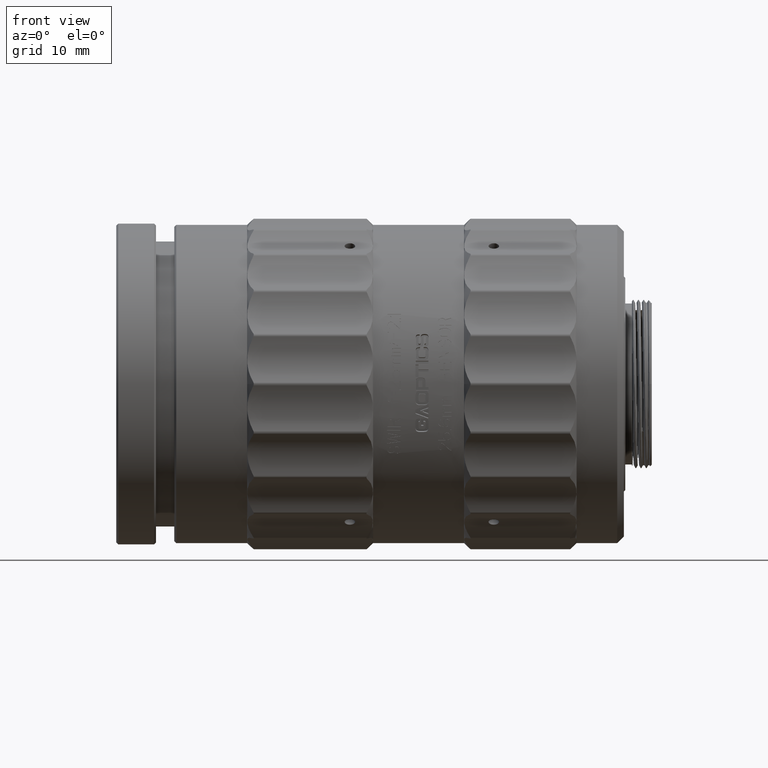
[diagram: clean part render]
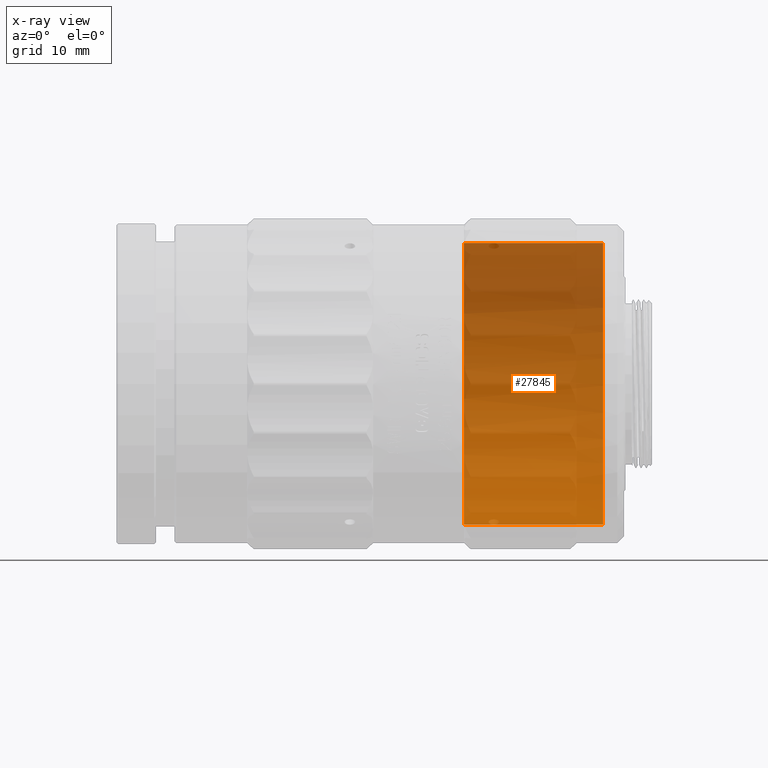
[diagram: x-ray — body ghosted, one internal face saturated and labeled with its STEP entity id]
A machine part, front view, then the same camera in x-ray: the body is ghosted and one INTERNAL B-rep face — a face not visible from any outside direction — is saturated and labeled: STEP entity #27845.
In plain terms, the highlighted cylindrical surface (partial cylindrical patch) has radius 21.25 mm, axis along (1, 0, 0).
Its self-contained STEP definition (entity closure, byte-faithful):
#2340 = CARTESIAN_POINT ( 'NONE',  ( 48.21600000000000819, 0.000000000000000000, 0.000000000000000000 ) ) ;
#3098 = EDGE_CURVE ( 'NONE', #66512, #49463, #5552, .T. ) ;
#4185 = CARTESIAN_POINT ( 'NONE',  ( 48.21600000000000819, 2.602374448188125448E-15, 21.25000000000000000 ) ) ;
#5182 = CARTESIAN_POINT ( 'NONE',  ( 69.21600000000000819, 19.09859079354296441, -9.420754746883625685 ) ) ;
#5552 = LINE ( 'NONE', #36062, #60601 ) ;
#6424 = CARTESIAN_POINT ( 'NONE',  ( 69.21600000000000819, 1.561424668912875308E-15, 21.25000000000000355 ) ) ;
#6573 = CARTESIAN_POINT ( 'NONE',  ( 48.21600000000000819, 2.602374448188125448E-15, 21.25000000000000000 ) ) ;
#7132 = CARTESIAN_POINT ( 'NONE',  ( 69.21600000000000819, 21.24996389597720281, -1.394928213302847553 ) ) ;
#8655 = DIRECTION ( 'NONE',  ( 0.000000000000000000, 0.000000000000000000, -1.000000000000000000 ) ) ;
#9264 = DIRECTION ( 'NONE',  ( 0.000000000000000000, 0.000000000000000000, -1.000000000000000000 ) ) ;
#11572 = DIRECTION ( 'NONE',  ( 1.000000000000000000, 0.000000000000000000, 0.000000000000000000 ) ) ;
#11588 = CARTESIAN_POINT ( 'NONE',  ( 69.21600000000000819, -1.040949779275250140E-15, -21.24999999999999645 ) ) ;
#12556 = CARTESIAN_POINT ( 'NONE',  ( 69.21599999999999397, 6.843291128612816188, 20.16628933818980229 ) ) ;
#12935 = DIRECTION ( 'NONE',  ( 1.000000000000000000, 0.000000000000000000, 0.000000000000000000 ) ) ;
#13553 = CARTESIAN_POINT ( 'NONE',  ( 69.21600000000002240, 18.44373987332132714, -10.64604708930406751 ) ) ;
#16534 = CARTESIAN_POINT ( 'NONE',  ( 48.21600000000000819, 0.000000000000000000, 0.000000000000000000 ) ) ;
#18600 = CYLINDRICAL_SURFACE ( 'NONE', #93836, 21.25000000000000000 ) ;
#20783 = ORIENTED_EDGE ( 'NONE', *, *, #3098, .F. ) ;
#21439 = CARTESIAN_POINT ( 'NONE',  ( 69.21600000000000819, 21.25003610402280074, 1.394928213302846221 ) ) ;
#21494 = VERTEX_POINT ( 'NONE', #6424 ) ;
#23378 = CARTESIAN_POINT ( 'NONE',  ( 48.21600000000000819, 0.000000000000000000, -21.25000000000000000 ) ) ;
#23826 = VECTOR ( 'NONE', #11572, 1000.000000000000000 ) ;
#27840 = CARTESIAN_POINT ( 'NONE',  ( 69.21600000000000819, 20.56958562454344630, 5.513801445203005080 ) ) ;
#27845 = ADVANCED_FACE ( 'NONE', ( #86072 ), #18600, .T. ) ;
#28325 = CARTESIAN_POINT ( 'NONE',  ( 69.21600000000002240, 2.777369749548842748, 21.11389573618955495 ) ) ;
#29917 = ORIENTED_EDGE ( 'NONE', *, *, #92379, .T. ) ;
#34734 = CARTESIAN_POINT ( 'NONE',  ( 69.21600000000000819, 10.64600697265606755, -18.44367983453014403 ) ) ;
#35214 = CARTESIAN_POINT ( 'NONE',  ( 69.21600000000002240, 20.16622262665926968, 6.843263495765633309 ) ) ;
#36062 = CARTESIAN_POINT ( 'NONE',  ( 48.21600000000000819, 0.000000000000000000, -21.25000000000000000 ) ) ;
#39164 = DIRECTION ( 'NONE',  ( 1.000000000000000000, 0.000000000000000000, 0.000000000000000000 ) ) ;
#42592 = CARTESIAN_POINT ( 'NONE',  ( 69.21600000000000819, 21.11385961318636362, -2.777551327583146268 ) ) ;
#43566 = CARTESIAN_POINT ( 'NONE',  ( 69.21600000000002240, 18.44367983454344184, 10.64600697263616524 ) ) ;
#48025 = LINE ( 'NONE', #4185, #23826 ) ;
#48868 = B_SPLINE_CURVE_WITH_KNOTS ( 'NONE', 3,
 ( #11588, #94311, #71678, #56888, #86960, #49489, #34734, #94811, #57373, #87444, #88908, #13553, #5182, #65239, #51925, #42592, #7132, #21439, #95782, #27840, #35214, #95295, #43566, #59332, #67202, #97244, #96269, #74613, #58835, #12556, #51454, #28325, #96755, #73647 ),
 .UNSPECIFIED., .F., .F.,
 ( 4, 2, 2, 2, 2, 2, 2, 2, 2, 2, 2, 2, 2, 2, 2, 2, 4 ),
 ( 0.000000000000000000, 0.06249999999999991673, 0.1249999999999998335, 0.1874999999999997502, 0.2499999999999996669, 0.3124999999999996114, 0.3749999999999996114, 0.4374999999999996114, 0.4999999999999996669, 0.5624999999999996669, 0.6249999999999996669, 0.6874999999999997780, 0.7499999999999997780, 0.8124999999999997780, 0.8749999999999997780, 0.9374999999999998890, 1.000000000000000000 ),
 .UNSPECIFIED. ) ;
#49463 = VERTEX_POINT ( 'NONE', #58568 ) ;
#49489 = CARTESIAN_POINT ( 'NONE',  ( 69.21600000000000819, 9.420782379754255587, -19.09865750506803295 ) ) ;
#51454 = CARTESIAN_POINT ( 'NONE',  ( 69.21600000000002240, 5.513968936136627086, 20.56947868094774989 ) ) ;
#51925 = CARTESIAN_POINT ( 'NONE',  ( 69.21600000000000819, 20.56951480395093412, -5.513787358102307579 ) ) ;
#53618 = EDGE_CURVE ( 'NONE', #66512, #76983, #81050, .T. ) ;
#56888 = CARTESIAN_POINT ( 'NONE',  ( 69.21599999999999397, 5.513801445166371273, -20.56958562455954365 ) ) ;
#57373 = CARTESIAN_POINT ( 'NONE',  ( 69.21600000000000819, 14.03963037192215069, -16.01235676970278732 ) ) ;
#58568 = CARTESIAN_POINT ( 'NONE',  ( 69.21600000000000819, -1.040949779275250140E-15, -21.24999999999999645 ) ) ;
#58835 = CARTESIAN_POINT ( 'NONE',  ( 69.21600000000002240, 9.420754746903503118, 19.09859079353989131 ) ) ;
#59332 = CARTESIAN_POINT ( 'NONE',  ( 69.21600000000000819, 16.89377868831473961, 12.96572793069691620 ) ) ;
#60601 = VECTOR ( 'NONE', #12935, 1000.000000000000000 ) ;
#65239 = CARTESIAN_POINT ( 'NONE',  ( 69.21600000000002240, 20.16628933818671854, -6.843291128632691844 ) ) ;
#66512 = VERTEX_POINT ( 'NONE', #23378 ) ;
#67202 = CARTESIAN_POINT ( 'NONE',  ( 69.21600000000002240, 16.01235676971387178, 14.03963037191765473 ) ) ;
#70787 = DIRECTION ( 'NONE',  ( 1.000000000000000000, 0.000000000000000000, 0.000000000000000000 ) ) ;
#71678 = CARTESIAN_POINT ( 'NONE',  ( 69.21599999999999397, 2.777537240519083905, -21.11378879257776120 ) ) ;
#73647 = CARTESIAN_POINT ( 'NONE',  ( 69.21600000000000819, 1.561424668912875308E-15, 21.25000000000000355 ) ) ;
#74613 = CARTESIAN_POINT ( 'NONE',  ( 69.21600000000000819, 10.64604708929526389, 18.44373987333013076 ) ) ;
#76983 = VERTEX_POINT ( 'NONE', #6573 ) ;
#78824 = ORIENTED_EDGE ( 'NONE', *, *, #93533, .F. ) ;
#81050 = CIRCLE ( 'NONE', #87356, 21.25000000000000000 ) ;
#86072 = FACE_OUTER_BOUND ( 'NONE', #92289, .T. ) ;
#86960 = CARTESIAN_POINT ( 'NONE',  ( 69.21600000000000819, 6.843263495762063719, -20.16622262666166421 ) ) ;
#87356 = AXIS2_PLACEMENT_3D ( 'NONE', #16534, #39164, #8655 ) ;
#87444 = CARTESIAN_POINT ( 'NONE',  ( 69.21600000000002240, 16.01240782850611666, -14.03968143072548891 ) ) ;
#88908 = CARTESIAN_POINT ( 'NONE',  ( 69.21600000000002240, 16.89371864953685431, -12.96568781402903525 ) ) ;
#88954 = ORIENTED_EDGE ( 'NONE', *, *, #53618, .T. ) ;
#92289 = EDGE_LOOP ( 'NONE', ( #88954, #29917, #78824, #20783 ) ) ;
#92379 = EDGE_CURVE ( 'NONE', #76983, #21494, #48025, .T. ) ;
#93533 = EDGE_CURVE ( 'NONE', #49463, #21494, #48868, .T. ) ;
#93836 = AXIS2_PLACEMENT_3D ( 'NONE', #2340, #70787, #9264 ) ;
#94311 = CARTESIAN_POINT ( 'NONE',  ( 69.21600000000000819, 1.395109744993475065, -21.24999999999999645 ) ) ;
#94811 = CARTESIAN_POINT ( 'NONE',  ( 69.21600000000003661, 12.96572793067702456, -16.89377868832804097 ) ) ;
#95295 = CARTESIAN_POINT ( 'NONE',  ( 69.21600000000002240, 19.09865750507041682, 9.420782379750686886 ) ) ;
#95782 = CARTESIAN_POINT ( 'NONE',  ( 69.21600000000002240, 21.11378879259384433, 2.777537240482442993 ) ) ;
#96269 = CARTESIAN_POINT ( 'NONE',  ( 69.21600000000002240, 12.96568781403782999, 16.89371864952805069 ) ) ;
#96755 = CARTESIAN_POINT ( 'NONE',  ( 69.21600000000003661, 1.395479968601270437, 21.25000000000001066 ) ) ;
#97244 = CARTESIAN_POINT ( 'NONE',  ( 69.21600000000002240, 14.03968143071439201, 16.01240782851061795 ) ) ;